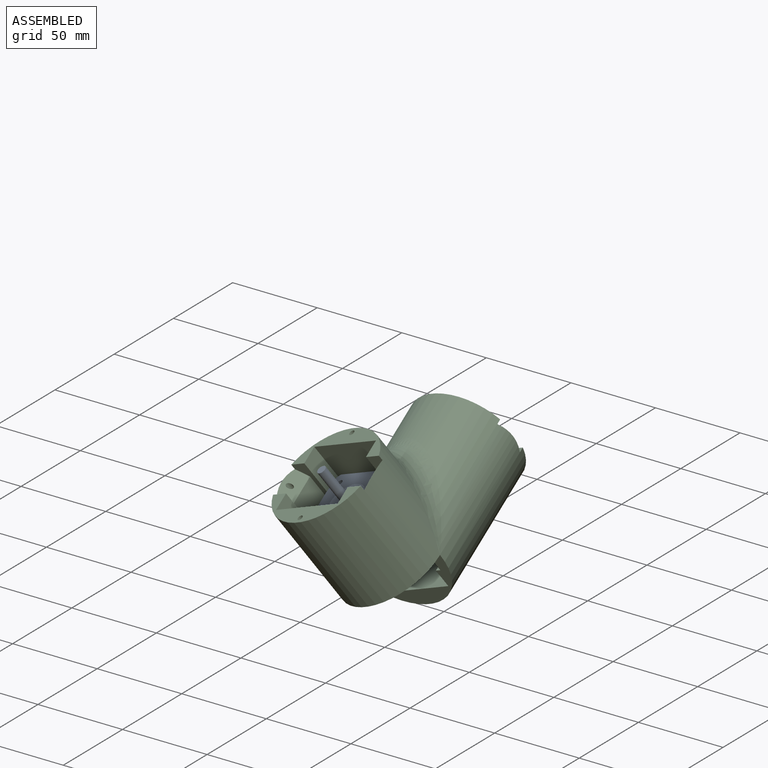
[diagram: assembled view]
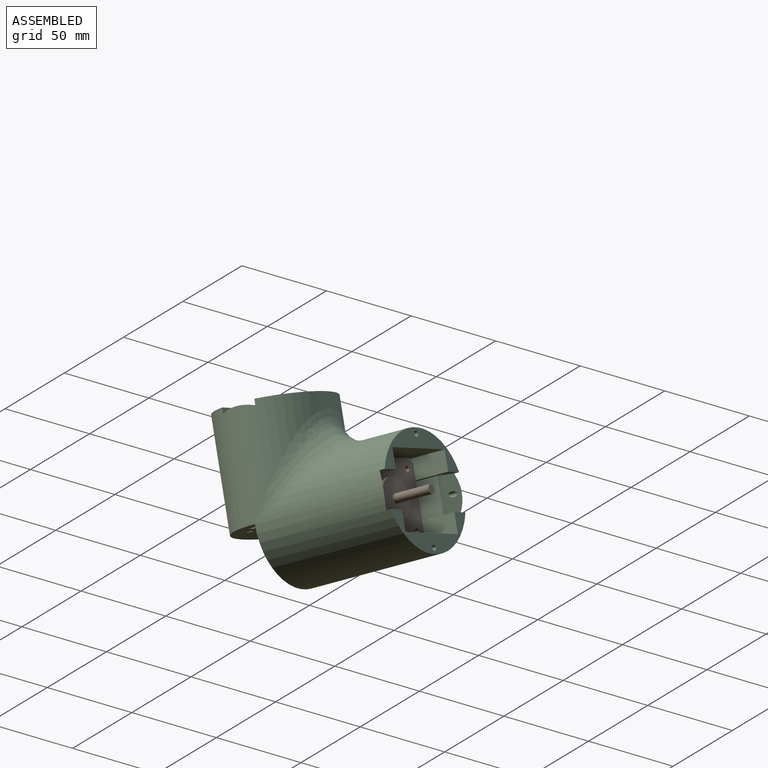
[diagram: assembled view, second angle]
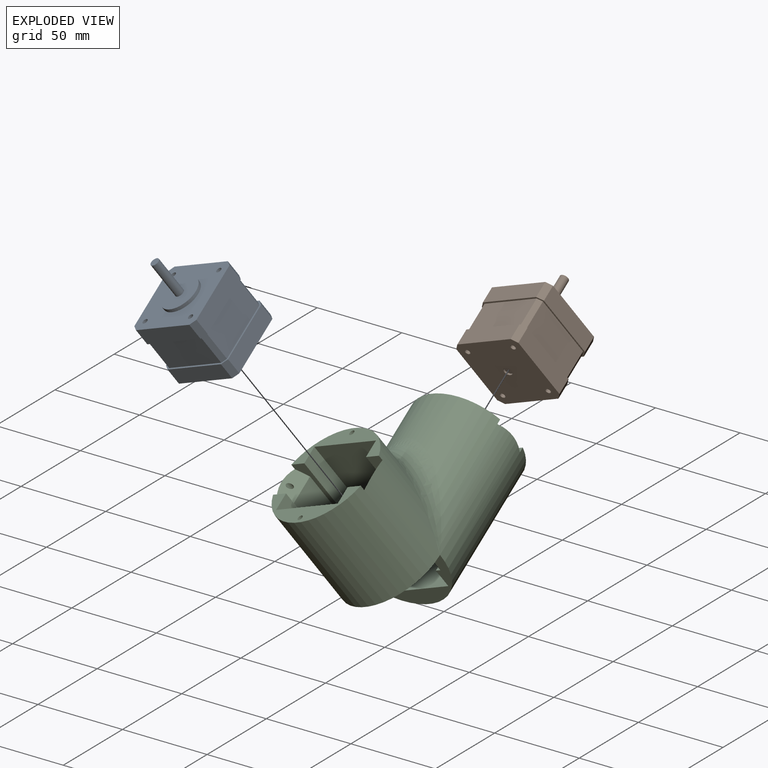
[diagram: exploded view]
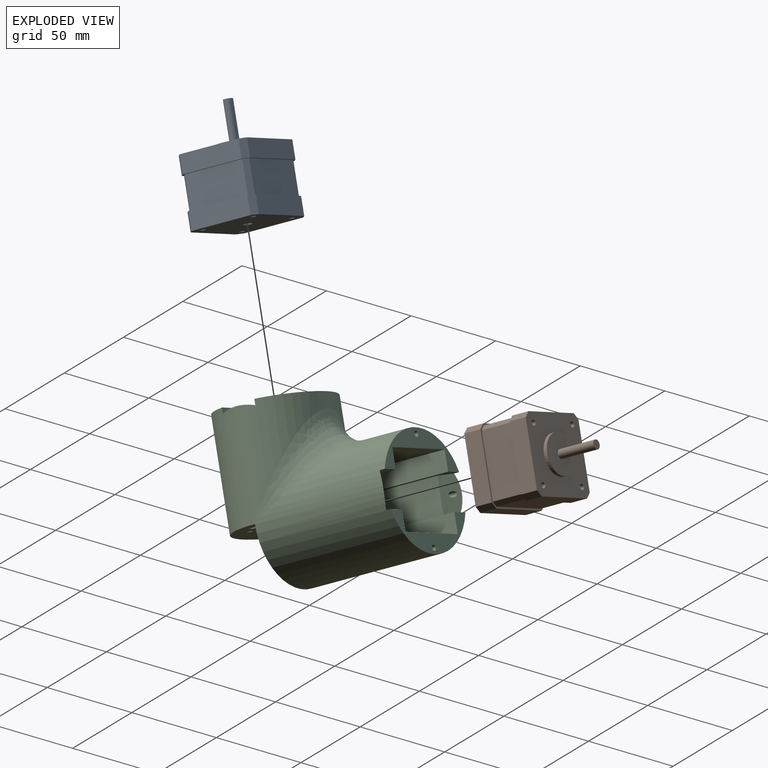
[diagram: exploded view, second angle]
ASSEMBLY  parts=3 mates=2
PART A: 38 faces, bbox 42.3x62x42.3 mm
  f0: plane 42.3x42.3mm, normal (0,1,0), area 158.9mm2, adj f3,f4,f5,f6,f7,f8,f9,f10
  f1: plane 22x22mm, normal (0,-1,0), area 360.5mm2, adj f11,f12
  f2: plane 42.3x42.3mm, normal (0,-1,0), area 1362.9mm2, adj f3,f4,f5,f6,f7,f8,f9,f10
  f3: plane 10x3mm, normal (-0.71,0,0.71), area 42.4mm2, adj f0,f2,f4,f10
  f4: plane 36.3x10mm, normal (-1,0,0), area 363mm2, adj f0,f2,f3,f5
  f5: plane 10x3mm, normal (-0.71,0,-0.71), area 42.4mm2, adj f0,f2,f4,f6
  f6: plane 36.3x10mm, normal (0,0,-1), area 363mm2, adj f0,f2,f5,f7
  f7: plane 10x3mm, normal (0.71,0,-0.71), area 42.4mm2, adj f0,f2,f6,f8
  f8: plane 36.3x10mm, normal (1,0,0), area 363mm2, adj f0,f2,f7,f9
  f9: plane 10x3mm, normal (0.71,0,0.71), area 42.4mm2, adj f0,f2,f8,f10
  f10: plane 36.3x10mm, normal (0,0,1), area 363mm2, adj f0,f2,f3,f9
  f11: cylinder r=11mm len=22mm, axis (0,1,0), area 138.2mm2, adj f1,f2
  f12: cylinder r=2.5mm len=22mm, axis (0,1,0), area 345.6mm2, adj f1,f13
  f13: plane 5x5mm, normal (0,-1,0), area 19.6mm2, adj f12
  f14: plane 35.47x18mm, normal (0,0,1), area 638.5mm2, adj f0,f15,f21,f22
  f15: plane 18x2.41mm, normal (0.71,0,0.71), area 61.5mm2, adj f0,f14,f16,f22
  f16: plane 35.47x18mm, normal (1,0,0), area 638.5mm2, adj f0,f15,f17,f22
  f17: plane 18x2.41mm, normal (0.71,0,-0.71), area 61.5mm2, adj f0,f16,f18,f22
  f18: plane 35.47x18mm, normal (0,0,-1), area 638.5mm2, adj f0,f17,f19,f22
  f19: plane 18x2.41mm, normal (-0.71,0,-0.71), area 61.5mm2, adj f0,f18,f20,f22
  f20: plane 35.47x18mm, normal (-1,0,0), area 638.5mm2, adj f0,f19,f21,f22
  f21: plane 18x2.41mm, normal (-0.71,0,0.71), area 61.5mm2, adj f0,f14,f20,f22
  f22: plane 42.3x42.3mm, normal (0,-1,0), area 158.9mm2, adj f14,f15,f16,f17,f18,f19,f20,f21
  f23: plane 10x3mm, normal (-0.71,0,0.71), area 42.4mm2, adj f22,f24,f30,f31
  f24: plane 36.3x10mm, normal (0,0,1), area 363mm2, adj f22,f23,f25,f31
  f25: plane 10x3mm, normal (0.71,0,0.71), area 42.4mm2, adj f22,f24,f26,f31
  f26: plane 36.3x10mm, normal (1,0,0), area 363mm2, adj f22,f25,f27,f31
  f27: plane 10x3mm, normal (0.71,0,-0.71), area 42.4mm2, adj f22,f26,f28,f31
  f28: plane 36.3x10mm, normal (0,0,-1), area 363mm2, adj f22,f27,f29,f31
  f29: plane 10x3mm, normal (-0.71,0,-0.71), area 42.4mm2, adj f22,f28,f30,f31
  f30: plane 36.3x10mm, normal (-1,0,0), area 363mm2, adj f22,f23,f29,f31
  f31: plane 42.3x42.3mm, normal (0,1,0), area 1723.4mm2, adj f23,f24,f25,f26,f27,f28,f29,f30
  f32: cylinder r=1.5mm len=38mm, axis (0,-1,0), area 358.1mm2, adj f2,f31
  f33: cylinder r=1.5mm len=38mm, axis (0,-1,0), area 358.1mm2, adj f2,f31
  f34: cylinder r=1.5mm len=38mm, axis (0,-1,0), area 358.1mm2, adj f2,f31
  f35: cylinder r=1.5mm len=38mm, axis (0,-1,0), area 358.1mm2, adj f2,f31
  f36: cylinder r=2.5mm len=5mm, axis (0,1,0), area 15.7mm2, adj f31,f37
  f37: plane 5x5mm, normal (0,1,0), area 19.6mm2, adj f36
PART B: same geometry as A
PART C: 71 faces, bbox 63.6x113.1x92.1 mm
  f0: plane 59.74x21.5mm, normal (0,0,-1), area 470.3mm2, adj f5,f6,f8,f14,f23,f28,f64
  f1: plane 59.74x21.5mm, normal (0,1,0), area 470.3mm2, adj f10,f17,f19,f20,f27,f32,f52
  f2: plane 21x11mm, normal (1,0,0), area 231mm2, adj f9,f22,f27,f42
  f3: plane 50x11mm, normal (1,0,0), area 550mm2, adj f13,f16,f24,f25
  f4: plane 50x11mm, normal (-1,0,0), area 550mm2, adj f13,f16,f29,f31
  f5: plane 58x11mm, normal (-1,0,0), area 638mm2, adj f0,f8,f28,f33
  f6: plane 58x11mm, normal (1,0,0), area 638mm2, adj f0,f8,f23,f33
  f7: plane 21x11mm, normal (-1,0,0), area 231mm2, adj f9,f22,f32,f42
  f8: plane 58x42mm, normal (0,1,0), area 2436mm2, adj f0,f5,f6,f33
  f9: plane 42x21mm, normal (0,0,-1), area 882mm2, adj f2,f7,f22,f42
  f10: plane 58x11mm, normal (1,0,0), area 638mm2, adj f1,f20,f27,f48
  f11: plane 58x11mm, normal (1,0,0), area 638mm2, adj f18,f21,f25,f48
  f12: plane 58x11mm, normal (-1,0,0), area 638mm2, adj f18,f21,f31,f48
  f13: plane 59.74x21.5mm, normal (0,0,-1), area 470.3mm2, adj f3,f4,f14,f16,f24,f29,f55
  f14: cylinder r=31.5mm len=63mm, axis (0,0,-1), area 8547.5mm2, adj f0,f13,f15,f23,f24,f28,f29,f66
  f15: plane 63x52.5mm, normal (0,0,1), area 1958.3mm2, adj f14,f22,f23,f26,f28,f30,f34,f35
  f16: plane 58x42mm, normal (0,-1,0), area 2262.3mm2, adj f3,f4,f13,f33,f40,f41,f43,f44
  f17: plane 58x11mm, normal (-1,0,0), area 638mm2, adj f1,f20,f32,f48
  f18: plane 58x42mm, normal (0,0,1), area 2435.9mm2, adj f11,f12,f21,f48,f57
  f19: cylinder r=31.5mm len=81mm, axis (0,-1,0), area 12704.5mm2, adj f1,f21,f22,f25,f27,f31,f32,f66
  f20: plane 58x42mm, normal (0,0,-1), area 2436mm2, adj f1,f10,f17,f48
  f21: plane 59.74x21.5mm, normal (0,1,0), area 470.3mm2, adj f11,f12,f18,f19,f25,f31,f58
  f22: plane 63x31.5mm, normal (0,-1,0), area 616.6mm2, adj f2,f7,f9,f15,f19,f26,f27,f30
  f23: plane 60x8.87mm, normal (0,1,0), area 215.6mm2, adj f0,f6,f14,f15,f26,f40,f70
  f24: plane 50x8.87mm, normal (0,-1,0), area 185.6mm2, adj f3,f13,f14,f25,f26,f70
  f25: plane 71x8.87mm, normal (0,0,1), area 248.6mm2, adj f3,f11,f19,f21,f24,f26,f40,f68
  f26: plane 82x61mm, normal (1,0,0), area 2360mm2, adj f15,f22,f23,f24,f25,f27,f68,f70
  f27: plane 81x8.87mm, normal (0,0,-1), area 278.6mm2, adj f1,f2,f10,f19,f22,f26,f40,f68
  f28: plane 60x8.87mm, normal (0,1,0), area 215.6mm2, adj f0,f5,f14,f15,f30,f41,f69
  f29: plane 50x8.87mm, normal (0,-1,0), area 185.6mm2, adj f4,f13,f14,f30,f31,f69
  f30: plane 82x61mm, normal (-1,0,0), area 2360mm2, adj f15,f22,f28,f29,f31,f32,f67,f69
  f31: plane 71x8.87mm, normal (0,0,1), area 248.6mm2, adj f4,f12,f19,f21,f29,f30,f41,f67
  f32: plane 81x8.87mm, normal (0,0,-1), area 278.6mm2, adj f1,f7,f17,f19,f22,f30,f41,f67
  f33: plane 42x42mm, normal (0,0,-1), area 1341.6mm2, adj f5,f6,f8,f16,f34,f35,f36,f37
  f34: plane 22.4x2mm, normal (0,1,0), area 44.6mm2, adj f15,f33,f46
  f35: cylinder r=1.5mm len=3mm, axis (0,0,1), area 18.8mm2, adj f15,f33
  f36: cylinder r=1.5mm len=3mm, axis (0,0,1), area 18.8mm2, adj f15,f33
  f37: cylinder r=1.5mm len=3mm, axis (0,0,1), area 18.8mm2, adj f15,f33
  f38: cylinder r=11.2mm len=22.4mm, axis (0,0,1), area 140.7mm2, adj f15,f33
  f39: cylinder r=1.5mm len=3mm, axis (0,0,1), area 18.8mm2, adj f15,f33
  f40: plane 33x20mm, normal (-1,0,0), area 102mm2, adj f15,f16,f23,f25,f27,f33,f42,f48
  f41: plane 33x20mm, normal (1,0,0), area 102mm2, adj f15,f16,f28,f31,f32,f33,f42,f48
  f42: plane 42x21mm, normal (0,-1,0), area 670.8mm2, adj f2,f7,f9,f15,f40,f41,f45,f46
  f43: cylinder r=1.5mm len=3mm, axis (0,1,0), area 18.8mm2, adj f16,f48
  f44: cylinder r=1.5mm len=3mm, axis (0,1,0), area 18.8mm2, adj f16,f48
  f45: cylinder r=1.5mm len=3mm, axis (0,1,0), area 18.8mm2, adj f42,f48
  f46: cylinder r=11.2mm len=22.4mm, axis (0,1,0), area 140.7mm2, adj f16,f34,f42,f48
  f47: cylinder r=1.5mm len=3mm, axis (0,1,0), area 18.8mm2, adj f42,f48
  f48: plane 42x42mm, normal (0,1,0), area 1341.6mm2, adj f10,f11,f12,f17,f18,f20,f40,f41
  f49: cone r=0mm half-angle=59deg, axis (0,1,0), area 8.2mm2, adj f50
  f50: cylinder r=1.5mm len=56.78mm, axis (0,1,0), area 520.6mm2, adj f49,f67
  f51: cone r=0mm half-angle=59deg, axis (0,1,0), area 8.2mm2, adj f52
  f52: cylinder r=1.5mm len=60mm, axis (0,1,0), area 565.5mm2, adj f1,f51
  f53: cone r=0mm half-angle=59deg, axis (0,1,0), area 8.2mm2, adj f54
  f54: cylinder r=1.5mm len=56.78mm, axis (0,1,0), area 520.6mm2, adj f53,f68
  f55: cylinder r=1.5mm len=31.72mm, axis (0,0,-1), area 289.9mm2, adj f13,f58,f59
  f56: cylinder r=1.5mm len=6.48mm, axis (0,0,-1), area 54mm2, adj f57,f58,f59
  f57: cone r=0mm half-angle=59deg, axis (0,0,-1), area 8.1mm2, adj f18,f56
  f58: cylinder r=1.5mm len=52.72mm, axis (0,1,0), area 488.8mm2, adj f21,f55,f56
  f59: cylinder r=1.5mm len=7.28mm, axis (0,1,0), area 60.6mm2, adj f16,f55,f56
  f60: cylinder r=1.5mm len=34.99mm, axis (0,0,-1), area 315.6mm2, adj f61,f70
  f61: cone r=0mm half-angle=59deg, axis (0,0,-1), area 8.2mm2, adj f60
  f62: cylinder r=1.5mm len=34.98mm, axis (0,0,-1), area 315.6mm2, adj f63,f69
  f63: cone r=0mm half-angle=59deg, axis (0,0,-1), area 8.2mm2, adj f62
  f64: cylinder r=1.5mm len=38.2mm, axis (0,0,-1), area 360mm2, adj f0,f65
  f65: cone r=0mm half-angle=59deg, axis (0,0,-1), area 8.2mm2, adj f64
  f66: bspline ~63x51.5mm, area 2306.3mm2, adj f14,f19
  f67: plane 20.63x8.13mm, normal (-0.71,0.71,0), area 186.9mm2, adj f19,f30,f31,f32,f50
  f68: plane 20.63x8.13mm, normal (0.71,0.71,0), area 186.9mm2, adj f19,f25,f26,f27,f54
  f69: plane 20.63x8.13mm, normal (-0.71,0,-0.71), area 186.9mm2, adj f14,f28,f29,f30,f62
  f70: plane 20x7.5mm, normal (0.71,0,-0.71), area 186.9mm2, adj f14,f23,f24,f26,f60
PLACE A rot(axis=(0.13,0.85,-0.52),164.6deg) t=(762.57,-130.67,466.08)mm
PLACE B rot(axis=(-0.82,-0.16,0.55),161.3deg) t=(785.6,-69.39,458.26)mm
PLACE C rot(axis=(0,0.97,0.23),158.2deg) t=(762.66,-146.27,494.26)mm
MATE fastened B.f34 <-> C.f45  axis (0.09,-0.89,-0.44) through (802.33,-93.94,447.81)mm
MATE fastened A.f32 <-> C.f37  axis (0.36,0.44,-0.82) through (799.35,-136.05,445.33)mm
